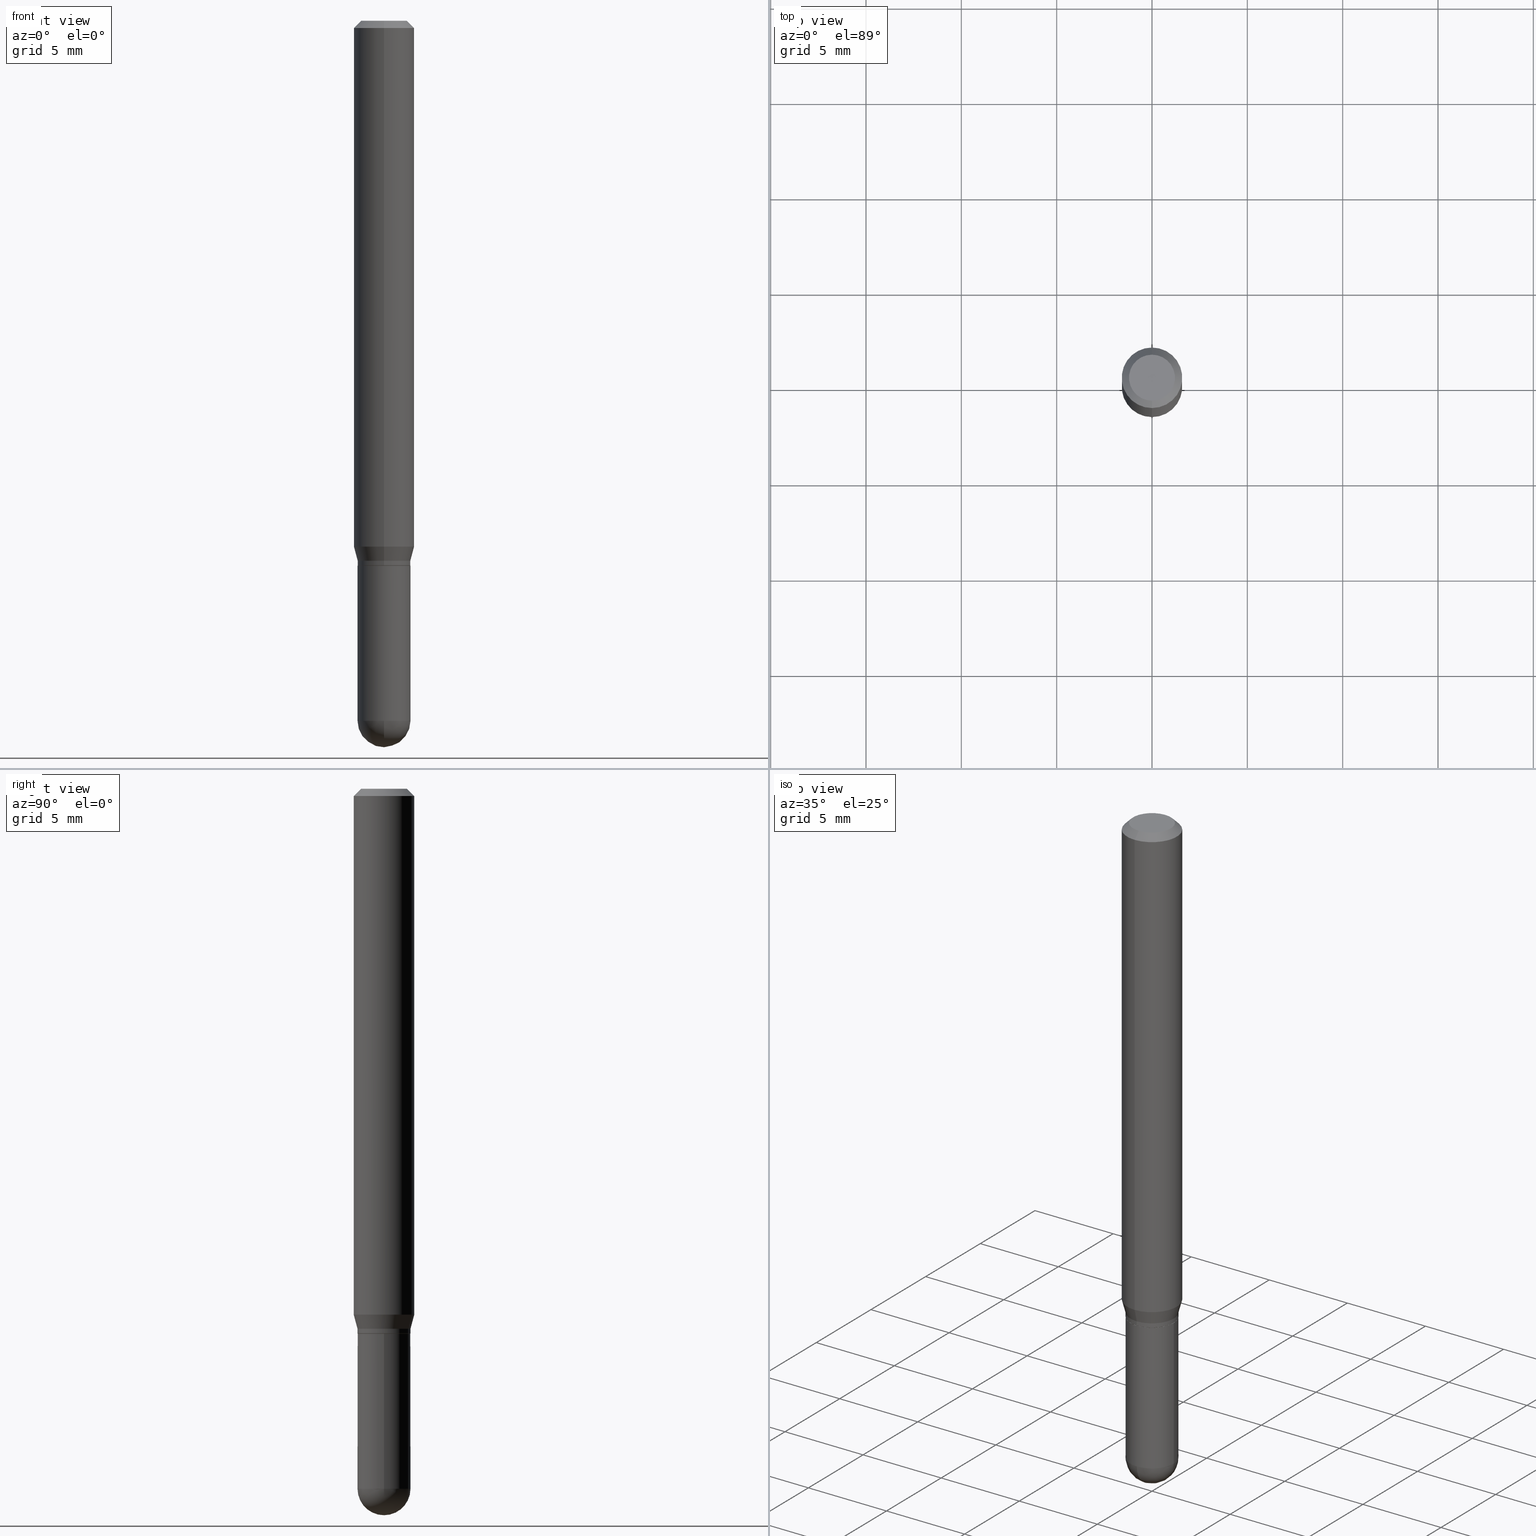
[diagram: canonical four-view strip — front | top / right | iso, engineering-drawing reading convention]
A machine part, canonical four-view strip (front | top / right | iso — engineering-drawing reading convention). The complete STEP part file that produces these views, byte-faithful:
ISO-10303-21;
HEADER;
FILE_DESCRIPTION (( 'STEP AP203' ),
    '1' );
FILE_NAME ('30037.STEP',
    '2024-03-08T15:16:41',
    ( '' ),
    ( '' ),
    'SwSTEP 2.0',
    'SolidWorks 2023',
    '' );
FILE_SCHEMA (( 'CONFIG_CONTROL_DESIGN' ));
ENDSEC;

DATA;
#1 = AXIS2_PLACEMENT_3D ( 'NONE', #16, #455, #255 ) ;
#2 = FACE_OUTER_BOUND ( 'NONE', #131, .T. ) ;
#3 = VECTOR ( 'NONE', #199, 39.37007874015748143 ) ;
#4 = CARTESIAN_POINT ( 'NONE',  ( -0.05469999999999999862, 3.886668764607747919E-16, -2.690657494369433708E-30 ) ) ;
#5 = CALENDAR_DATE ( 2024, 8, 3 ) ;
#6 = EDGE_CURVE ( 'NONE', #186, #304, #119, .T. ) ;
#7 = CARTESIAN_POINT ( 'NONE',  ( 0.000000000000000000, 0.000000000000000000, 0.000000000000000000 ) ) ;
#8 = DIRECTION ( 'NONE',  ( -2.445468806185136877E-29, 3.491481338843145188E-15, 1.000000000000000000 ) ) ;
#9 = VERTEX_POINT ( 'NONE', #47 ) ;
#10 = CC_DESIGN_DATE_AND_TIME_ASSIGNMENT ( #330, #488, ( #457 ) ) ;
#11 = FACE_OUTER_BOUND ( 'NONE', #418, .T. ) ;
#12 = DIRECTION ( 'NONE',  ( -2.445468806185136597E-29, 3.491481338843145583E-15, 1.000000000000000000 ) ) ;
#13 = DATE_AND_TIME ( #210, #154 ) ;
#14 = DIRECTION ( 'NONE',  ( -4.937700262164674260E-15, -0.7071067811865632269, 0.7071067811865319186 ) ) ;
#15 = VERTEX_POINT ( 'NONE', #42 ) ;
#16 = CARTESIAN_POINT ( 'NONE',  ( 3.819680584694662481E-16, 0.05469999999999607121, -1.125000000000000222 ) ) ;
#17 = EDGE_LOOP ( 'NONE', ( #63, #226, #39, #59 ) ) ;
#18 = ADVANCED_FACE ( 'NONE', ( #158 ), #373, .T. ) ;
#19 = DIRECTION ( 'NONE',  ( -6.982962677686265922E-15, -1.000000000000000000, 3.491940666139061088E-15 ) ) ;
#20 = AXIS2_PLACEMENT_3D ( 'NONE', #40, #198, #89 ) ;
#21 = VERTEX_POINT ( 'NONE', #205 ) ;
#22 = FACE_OUTER_BOUND ( 'NONE', #352, .T. ) ;
#23 = ORIENTED_EDGE ( 'NONE', *, *, #423, .T. ) ;
#24 = EDGE_CURVE ( 'NONE', #453, #461, #462, .T. ) ;
#25 = DIRECTION ( 'NONE',  ( -2.445468806185136597E-29, 3.491481338843145583E-15, 1.000000000000000000 ) ) ;
#26 = CARTESIAN_POINT ( 'NONE',  ( 3.534436065579377749E-29, -5.046237979029997798E-15, -1.445300000000000029 ) ) ;
#27 = EDGE_CURVE ( 'NONE', #461, #396, #512, .T. ) ;
#28 = CONICAL_SURFACE ( 'NONE', #92, 0.06250000000000000000, 0.7853981633974483900 ) ;
#29 = AXIS2_PLACEMENT_3D ( 'NONE', #261, #402, #88 ) ;
#30 = DIRECTION ( 'NONE',  ( 6.982962677686265922E-15, 1.000000000000000000, -4.994237648380731355E-15 ) ) ;
#31 = DIRECTION ( 'NONE',  ( 6.982962677686265922E-15, 1.000000000000000000, -3.483106191921935554E-15 ) ) ;
#32 = ORIENTED_EDGE ( 'NONE', *, *, #117, .T. ) ;
#33 = EDGE_CURVE ( 'NONE', #511, #313, #285, .T. ) ;
#34 = DIRECTION ( 'NONE',  ( 6.982962677686265922E-15, 1.000000000000000000, -3.491940666139060694E-15 ) ) ;
#35 = DIRECTION ( 'NONE',  ( 1.000000000000000000, -6.982962677686259611E-15, 0.000000000000000000 ) ) ;
#36 = VECTOR ( 'NONE', #325, 39.37007874015748143 ) ;
#37 = AXIS2_PLACEMENT_3D ( 'NONE', #118, #384, #34 ) ;
#38 = CARTESIAN_POINT ( 'NONE',  ( -0.05469999999999999862, -4.098410366153493916E-15, -1.125000000000000222 ) ) ;
#39 = ORIENTED_EDGE ( 'NONE', *, *, #295, .F. ) ;
#40 = CARTESIAN_POINT ( 'NONE',  ( 2.750791567104804618E-29, -3.928433249406443724E-15, -1.125000000000000222 ) ) ;
#41 = DIRECTION ( 'NONE',  ( -2.445148059648714686E-29, 3.491940666139061088E-15, 1.000000000000000000 ) ) ;
#42 = CARTESIAN_POINT ( 'NONE',  ( -3.886668764607396383E-16, -0.05470000000000508483, -1.445299999999999807 ) ) ;
#43 = ADVANCED_FACE ( 'NONE', ( #249 ), #45, .T. ) ;
#44 = SECURITY_CLASSIFICATION_LEVEL ( 'unclassified' ) ;
#45 = CONICAL_SURFACE ( 'NONE', #77, 0.05470000000000018597, 0.2617993877991511287 ) ;
#46 = ORGANIZATION ( 'UNSPECIFIED', 'UNSPECIFIED', '' ) ;
#47 = CARTESIAN_POINT ( 'NONE',  ( -4.364351673553652426E-16, -0.06250000000000380251, -1.085890003700963558 ) ) ;
#48 = DIRECTION ( 'NONE',  ( -2.445468806185136597E-29, 3.491481338843145583E-15, 1.000000000000000000 ) ) ;
#49 = ADVANCED_FACE ( 'NONE', ( #510 ), #274, .T. ) ;
#50 = DIRECTION ( 'NONE',  ( 1.000000000000000000, -6.982962677686259611E-15, 0.000000000000000000 ) ) ;
#51 = PERSON_AND_ORGANIZATION ( #417, #46 ) ;
#52 = DIRECTION ( 'NONE',  ( -6.982962677686265133E-15, -1.000000000000000000, 2.497118824190365677E-15 ) ) ;
#53 = COORDINATED_UNIVERSAL_TIME_OFFSET ( 5, 0, .BEHIND. ) ;
#54 = CC_DESIGN_PERSON_AND_ORGANIZATION_ASSIGNMENT ( #241, #479, ( #367 ) ) ;
#55 = DIRECTION ( 'NONE',  ( -2.445148059648714686E-29, 3.491940666139061088E-15, 1.000000000000000000 ) ) ;
#56 = EDGE_CURVE ( 'NONE', #65, #143, #433, .T. ) ;
#57 = DIRECTION ( 'NONE',  ( -2.445148059648714686E-29, 3.491940666139061088E-15, 1.000000000000000000 ) ) ;
#58 = EDGE_CURVE ( 'NONE', #65, #387, #85, .T. ) ;
#59 = ORIENTED_EDGE ( 'NONE', *, *, #166, .F. ) ;
#60 = CARTESIAN_POINT ( 'NONE',  ( 3.529758305977566399E-29, -5.052936797021334001E-15, -1.445300000000000029 ) ) ;
#61 = CIRCLE ( 'NONE', #404, 0.05470000000000018597 ) ;
#62 = AXIS2_PLACEMENT_3D ( 'NONE', #460, #188, #416 ) ;
#63 = ORIENTED_EDGE ( 'NONE', *, *, #306, .F. ) ;
#64 = DIRECTION ( 'NONE',  ( -6.982962677686265922E-15, -1.000000000000000000, 3.491940666139060694E-15 ) ) ;
#65 = VERTEX_POINT ( 'NONE', #97 ) ;
#66 = EDGE_CURVE ( 'NONE', #387, #192, #252, .T. ) ;
#67 = CARTESIAN_POINT ( 'NONE',  ( 4.163780431554463142E-16, 0.05469999999999629325, -1.115000000000000213 ) ) ;
#68 = SPHERICAL_SURFACE ( 'NONE', #183, 0.05470000000000006107 ) ;
#69 = VECTOR ( 'NONE', #309, 39.37007874015748143 ) ;
#70 = FACE_OUTER_BOUND ( 'NONE', #137, .T. ) ;
#71 = ADVANCED_FACE ( 'NONE', ( #216 ), #403, .F. ) ;
#72 = PLANE ( 'NONE',  #37 ) ;
#73 = ORIENTED_EDGE ( 'NONE', *, *, #442, .T. ) ;
#74 = CARTESIAN_POINT ( 'NONE',  ( 3.886668764607755808E-16, 0.05470000000000011658, -1.910091544378070355E-16 ) ) ;
#75 = DIRECTION ( 'NONE',  ( -6.982962677686265922E-15, -1.000000000000000000, 3.491940666139061088E-15 ) ) ;
#76 = CC_DESIGN_DATE_AND_TIME_ASSIGNMENT ( #474, #202, ( #434 ) ) ;
#77 = AXIS2_PLACEMENT_3D ( 'NONE', #321, #323, #353 ) ;
#78 = EDGE_CURVE ( 'NONE', #143, #192, #311, .T. ) ;
#79 = CARTESIAN_POINT ( 'NONE',  ( -0.05470000000000000556, -4.098410366153493916E-15, -1.445300000000000029 ) ) ;
#80 = CARTESIAN_POINT ( 'NONE',  ( 3.851141627820017007E-16, 0.05419999999999607077, -1.125000000000000222 ) ) ;
#81 = MANIFOLD_SOLID_BREP ( 'Body-Move/Copy2[2]', #248 ) ;
#82 = APPROVAL_DATE_TIME ( #392, #502 ) ;
#83 = ORIENTED_EDGE ( 'NONE', *, *, #284, .F. ) ;
#84 = EDGE_LOOP ( 'NONE', ( #152, #263 ) ) ;
#85 = CIRCLE ( 'NONE', #20, 0.05419999999999999818 ) ;
#86 = EDGE_LOOP ( 'NONE', ( #494, #497, #470, #312 ) ) ;
#87 = CARTESIAN_POINT ( 'NONE',  ( 2.726340086508316930E-29, -3.893513842745053460E-15, -1.115000000000000213 ) ) ;
#88 = DIRECTION ( 'NONE',  ( 1.000000000000000000, 0.000000000000000000, 0.000000000000000000 ) ) ;
#89 = DIRECTION ( 'NONE',  ( -6.982962677686266711E-15, -1.000000000000000000, 2.520154975705040126E-15 ) ) ;
#90 = ADVANCED_FACE ( 'NONE', ( #171 ), #214, .T. ) ;
#91 = MECHANICAL_CONTEXT ( 'NONE', #336, 'mechanical' ) ;
#92 = AXIS2_PLACEMENT_3D ( 'NONE', #466, #377, #269 ) ;
#93 = CARTESIAN_POINT ( 'NONE',  ( -3.784765771305681686E-16, -0.05420000000000392559, -1.125000000000000000 ) ) ;
#94 = AXIS2_PLACEMENT_3D ( 'NONE', #222, #374, #30 ) ;
#95 = ORIENTED_EDGE ( 'NONE', *, *, #505, .T. ) ;
#96 = COORDINATED_UNIVERSAL_TIME_OFFSET ( 5, 0, .BEHIND. ) ;
#97 = CARTESIAN_POINT ( 'NONE',  ( 3.868905196214021993E-16, 0.05419999999999607077, -1.125000000000000222 ) ) ;
#98 = EDGE_LOOP ( 'NONE', ( #508, #219, #372, #115 ) ) ;
#99 = APPROVAL_ROLE ( '' ) ;
#100 = CARTESIAN_POINT ( 'NONE',  ( 2.749568993074979869E-29, -3.926687279073374408E-15, -1.124500000000000055 ) ) ;
#101 = EDGE_LOOP ( 'NONE', ( #120, #456, #217, #247, #346 ) ) ;
#102 = CARTESIAN_POINT ( 'NONE',  ( 3.534436065579377749E-29, -5.046237979029997798E-15, -1.445300000000000029 ) ) ;
#103 = AXIS2_PLACEMENT_3D ( 'NONE', #176, #12, #329 ) ;
#104 = APPROVAL_PERSON_ORGANIZATION ( #116, #502, #435 ) ;
#105 = ORIENTED_EDGE ( 'NONE', *, *, #58, .F. ) ;
#106 = DIRECTION ( 'NONE',  ( -2.445148059648714686E-29, 3.491940666139061088E-15, 1.000000000000000000 ) ) ;
#107 = DIRECTION ( 'NONE',  ( -2.445148059648714686E-29, 3.491940666139061088E-15, 1.000000000000000000 ) ) ;
#108 = CARTESIAN_POINT ( 'NONE',  ( 3.665864329476799220E-29, -5.240571417260386673E-15, -1.500000000000000222 ) ) ;
#109 = AXIS2_PLACEMENT_3D ( 'NONE', #458, #135, #486 ) ;
#110 = AXIS2_PLACEMENT_3D ( 'NONE', #227, #345, #31 ) ;
#111 = LINE ( 'NONE', #393, #203 ) ;
#112 = ORIENTED_EDGE ( 'NONE', *, *, #66, .T. ) ;
#113 = CARTESIAN_POINT ( 'NONE',  ( 3.819680584694743340E-16, 0.05469999999999498180, -1.445300000000000251 ) ) ;
#114 = EDGE_LOOP ( 'NONE', ( #177, #317, #478, #337 ) ) ;
#115 = ORIENTED_EDGE ( 'NONE', *, *, #24, .F. ) ;
#116 = PERSON_AND_ORGANIZATION ( #417, #46 ) ;
#117 = EDGE_CURVE ( 'NONE', #208, #297, #61, .T. ) ;
#118 = CARTESIAN_POINT ( 'NONE',  ( 3.316907271900976096E-16, 0.04749999999999999362, -1.702864324142429345E-16 ) ) ;
#119 = LINE ( 'NONE', #165, #221 ) ;
#120 = ORIENTED_EDGE ( 'NONE', *, *, #27, .F. ) ;
#121 = DIRECTION ( 'NONE',  ( -6.982962677686266711E-15, -1.000000000000000000, 2.520154975705040126E-15 ) ) ;
#122 = AXIS2_PLACEMENT_3D ( 'NONE', #484, #411, #19 ) ;
#123 = APPROVAL_PERSON_ORGANIZATION ( #290, #148, #132 ) ;
#124 = DIRECTION ( 'NONE',  ( -6.982962677686266711E-15, -1.000000000000000000, 2.497118824190360155E-15 ) ) ;
#125 = EDGE_CURVE ( 'NONE', #186, #9, #492, .T. ) ;
#126 = APPLICATION_PROTOCOL_DEFINITION ( 'international standard', 'config_control_design', 1994, #336 ) ;
#127 = CYLINDRICAL_SURFACE ( 'NONE', #122, 0.06250000000000000000 ) ;
#128 = APPROVAL_DATE_TIME ( #13, #155 ) ;
#129 = CYLINDRICAL_SURFACE ( 'NONE', #103, 0.05469999999999999862 ) ;
#130 = DESIGN_CONTEXT ( 'detailed design', #412, 'design' ) ;
#131 = EDGE_LOOP ( 'NONE', ( #375, #355, #324, #333 ) ) ;
#132 = APPROVAL_ROLE ( '' ) ;
#133 = ADVANCED_FACE ( 'NONE', ( #11 ), #127, .T. ) ;
#134 = AXIS2_PLACEMENT_3D ( 'NONE', #200, #363, #35 ) ;
#135 = DIRECTION ( 'NONE',  ( -2.445148059648714406E-29, 3.491940666139060694E-15, 1.000000000000000000 ) ) ;
#136 = CIRCLE ( 'NONE', #405, 0.05469999999999999862 ) ;
#137 = EDGE_LOOP ( 'NONE', ( #32, #95, #500, #184 ) ) ;
#138 = DATE_AND_TIME ( #410, #379 ) ;
#139 = FACE_OUTER_BOUND ( 'NONE', #140, .T. ) ;
#140 = EDGE_LOOP ( 'NONE', ( #400, #105 ) ) ;
#141 = LINE ( 'NONE', #464, #452 ) ;
#142 = EDGE_CURVE ( 'NONE', #511, #360, #407, .T. ) ;
#143 = VERTEX_POINT ( 'NONE', #451 ) ;
#144 = CARTESIAN_POINT ( 'NONE',  ( 3.667722089473074341E-31, -5.237910999208594418E-17, -0.01500000000000000812 ) ) ;
#145 = AXIS2_PLACEMENT_3D ( 'NONE', #308, #106, #64 ) ;
#146 = AXIS2_PLACEMENT_3D ( 'NONE', #102, #25, #469 ) ;
#147 = CARTESIAN_POINT ( 'NONE',  ( -3.784765771305681686E-16, -0.05420000000000392559, -1.125000000000000000 ) ) ;
#148 = APPROVAL ( #490, 'UNSPECIFIED' ) ;
#149 = DIRECTION ( 'NONE',  ( -2.445468806185136597E-29, 3.491481338843145583E-15, 1.000000000000000000 ) ) ;
#150 = PRODUCT ( '30037', '30037', '', ( #91 ) ) ;
#151 = CARTESIAN_POINT ( 'NONE',  ( 4.440892098500893388E-16, 0.06249999999999995143, -0.01500000000000022669 ) ) ;
#152 = ORIENTED_EDGE ( 'NONE', *, *, #408, .T. ) ;
#153 = CLOSED_SHELL ( 'NONE', ( #190, #381, #71, #310, #90 ) ) ;
#154 = LOCAL_TIME ( 10, 16, 41.00000000000000000, #53 ) ;
#155 = APPROVAL ( #175, 'UNSPECIFIED' ) ;
#156 = ORIENTED_EDGE ( 'NONE', *, *, #295, .T. ) ;
#157 = CARTESIAN_POINT ( 'NONE',  ( -3.819680584694128028E-16, -0.05470000000000407869, -1.114999999999999991 ) ) ;
#158 = FACE_OUTER_BOUND ( 'NONE', #385, .T. ) ;
#159 = EDGE_CURVE ( 'NONE', #9, #186, #327, .T. ) ;
#160 = CYLINDRICAL_SURFACE ( 'NONE', #504, 0.05470000000000011658 ) ;
#161 = ORIENTED_EDGE ( 'NONE', *, *, #344, .T. ) ;
#162 = PERSON_AND_ORGANIZATION_ROLE ( 'creator' ) ;
#163 = AXIS2_PLACEMENT_3D ( 'NONE', #204, #280, #436 ) ;
#164 = DIRECTION ( 'NONE',  ( 1.839019923739606232E-15, 0.2588190451025257910, 0.9659258262890669799 ) ) ;
#165 = CARTESIAN_POINT ( 'NONE',  ( 4.440892098500625669E-16, 0.06250000000000000000, -2.182462916336913180E-16 ) ) ;
#166 = EDGE_CURVE ( 'NONE', #15, #292, #271, .T. ) ;
#167 = CALENDAR_DATE ( 2024, 8, 3 ) ;
#168 = DIRECTION ( 'NONE',  ( -2.445148059648714686E-29, 3.491940666139060694E-15, 1.000000000000000000 ) ) ;
#169 = DIRECTION ( 'NONE',  ( -2.445148059648714686E-29, 3.491940666139061088E-15, 1.000000000000000000 ) ) ;
#170 = ORIENTED_EDGE ( 'NONE', *, *, #117, .F. ) ;
#171 = FACE_OUTER_BOUND ( 'NONE', #101, .T. ) ;
#172 = AXIS2_PLACEMENT_3D ( 'NONE', #341, #55, #399 ) ;
#173 = LOCAL_TIME ( 10, 16, 41.00000000000000000, #245 ) ;
#174 = FACE_OUTER_BOUND ( 'NONE', #481, .T. ) ;
#175 = APPROVAL_STATUS ( 'not_yet_approved' ) ;
#176 = CARTESIAN_POINT ( 'NONE',  ( 0.000000000000000000, 0.000000000000000000, 0.000000000000000000 ) ) ;
#177 = ORIENTED_EDGE ( 'NONE', *, *, #159, .T. ) ;
#178 = DIRECTION ( 'NONE',  ( -6.982962677686265922E-15, -1.000000000000000000, 4.370956789862821150E-15 ) ) ;
#179 = ORIENTED_EDGE ( 'NONE', *, *, #58, .T. ) ;
#180 = PERSON_AND_ORGANIZATION_ROLE ( 'design_owner' ) ;
#181 = VECTOR ( 'NONE', #331, 39.37007874015748143 ) ;
#182 = PLANE ( 'NONE',  #109 ) ;
#183 = AXIS2_PLACEMENT_3D ( 'NONE', #228, #506, #429 ) ;
#184 = ORIENTED_EDGE ( 'NONE', *, *, #487, .F. ) ;
#185 = DIRECTION ( 'NONE',  ( -2.445148059648714686E-29, 3.491940666139061088E-15, 1.000000000000000000 ) ) ;
#186 = VERTEX_POINT ( 'NONE', #369 ) ;
#187 = PRODUCT_RELATED_PRODUCT_CATEGORY ( 'detail', '', ( #150 ) ) ;
#188 = DIRECTION ( 'NONE',  ( -1.000000000000000000, 7.105427357601001070E-15, -4.926315508542082329E-29 ) ) ;
#189 = DIRECTION ( 'NONE',  ( -6.982962677686265922E-15, -1.000000000000000000, 3.483106191921935554E-15 ) ) ;
#190 = ADVANCED_FACE ( 'NONE', ( #174 ), #129, .T. ) ;
#191 = CYLINDRICAL_SURFACE ( 'NONE', #145, 0.05470000000000011658 ) ;
#192 = VERTEX_POINT ( 'NONE', #371 ) ;
#193 = LINE ( 'NONE', #74, #265 ) ;
#194 = ORIENTED_EDGE ( 'NONE', *, *, #268, .F. ) ;
#195 = AXIS2_PLACEMENT_3D ( 'NONE', #472, #169, #314 ) ;
#196 = CC_DESIGN_APPROVAL ( #148, ( #367 ) ) ;
#197 = ORIENTED_EDGE ( 'NONE', *, *, #6, .F. ) ;
#198 = DIRECTION ( 'NONE',  ( -2.445148059648714686E-29, 3.491940666139061088E-15, 1.000000000000000000 ) ) ;
#199 = DIRECTION ( 'NONE',  ( -1.807323732225336056E-15, -0.2588190451025190186, 0.9659258262890687563 ) ) ;
#200 = CARTESIAN_POINT ( 'NONE',  ( 3.534436065579377749E-29, -5.046237979029997798E-15, -1.445300000000000029 ) ) ;
#201 = AXIS2_PLACEMENT_3D ( 'NONE', #100, #258, #52 ) ;
#202 = DATE_TIME_ROLE ( 'classification_date' ) ;
#203 = VECTOR ( 'NONE', #168, 39.37007874015748143 ) ;
#204 = CARTESIAN_POINT ( 'NONE',  ( 2.161144490363163213E-46, -3.086352297367912300E-32, -8.838501545275121321E-18 ) ) ;
#205 = CARTESIAN_POINT ( 'NONE',  ( 0.05469999999999999862, -4.309884564667978405E-15, -1.125000000000000222 ) ) ;
#206 = ADVANCED_FACE ( 'NONE', ( #139 ), #182, .F. ) ;
#207 = DIRECTION ( 'NONE',  ( 1.000000000000000000, -6.982962677686266711E-15, 4.876176775795935793E-29 ) ) ;
#208 = VERTEX_POINT ( 'NONE', #335 ) ;
#209 = DIRECTION ( 'NONE',  ( -2.445148059648714686E-29, 3.491940666139061088E-15, 1.000000000000000000 ) ) ;
#210 = CALENDAR_DATE ( 2024, 8, 3 ) ;
#211 = AXIS2_PLACEMENT_3D ( 'NONE', #236, #282, #121 ) ;
#212 = LOCAL_TIME ( 10, 16, 41.00000000000000000, #454 ) ;
#213 = AXIS2_PLACEMENT_3D ( 'NONE', #26, #351, #350 ) ;
#214 = CYLINDRICAL_SURFACE ( 'NONE', #432, 0.05469999999999999862 ) ;
#215 = EDGE_CURVE ( 'NONE', #387, #65, #397, .T. ) ;
#216 = FACE_OUTER_BOUND ( 'NONE', #224, .T. ) ;
#217 = ORIENTED_EDGE ( 'NONE', *, *, #166, .T. ) ;
#218 = CARTESIAN_POINT ( 'NONE',  ( -4.287811248607203282E-16, -0.06250000000000005551, -0.01499999999999979128 ) ) ;
#219 = ORIENTED_EDGE ( 'NONE', *, *, #306, .T. ) ;
#220 = EDGE_CURVE ( 'NONE', #292, #21, #289, .T. ) ;
#221 = VECTOR ( 'NONE', #394, 39.37007874015748143 ) ;
#222 = CARTESIAN_POINT ( 'NONE',  ( 3.529758305977566399E-29, -5.052936797021334001E-15, -1.445300000000000029 ) ) ;
#223 = CIRCLE ( 'NONE', #163, 0.04749999999999999362 ) ;
#224 = EDGE_LOOP ( 'NONE', ( #409, #161 ) ) ;
#225 = CARTESIAN_POINT ( 'NONE',  ( 0.05470000000000000556, -4.869045301083706902E-15, -1.445300000000000029 ) ) ;
#226 = ORIENTED_EDGE ( 'NONE', *, *, #293, .T. ) ;
#227 = CARTESIAN_POINT ( 'NONE',  ( 3.667722089473074341E-31, -5.237910999208594418E-17, -0.01500000000000000812 ) ) ;
#228 = CARTESIAN_POINT ( 'NONE',  ( 3.529758305977566399E-29, -5.052936797021334001E-15, -1.445300000000000029 ) ) ;
#229 = EDGE_CURVE ( 'NONE', #297, #208, #386, .T. ) ;
#230 = CONICAL_SURFACE ( 'NONE', #110, 0.06250000000000000000, 0.7853981633974483900 ) ;
#231 = LINE ( 'NONE', #499, #69 ) ;
#232 = DIRECTION ( 'NONE',  ( -6.982962677686265922E-15, -1.000000000000000000, 3.491940666139060694E-15 ) ) ;
#233 = ORIENTED_EDGE ( 'NONE', *, *, #24, .T. ) ;
#234 = EDGE_CURVE ( 'NONE', #21, #396, #475, .T. ) ;
#235 = CARTESIAN_POINT ( 'NONE',  ( 2.750791567104804618E-29, -3.928433249406443724E-15, -1.125000000000000222 ) ) ;
#236 = CARTESIAN_POINT ( 'NONE',  ( 2.750791567104804618E-29, -3.928433249406443724E-15, -1.125000000000000222 ) ) ;
#237 = AXIS2_PLACEMENT_3D ( 'NONE', #496, #296, #299 ) ;
#238 = CC_DESIGN_SECURITY_CLASSIFICATION ( #434, ( #367 ) ) ;
#239 = DIRECTION ( 'NONE',  ( -2.445148059648714686E-29, 3.491940666139060694E-15, 1.000000000000000000 ) ) ;
#240 = DIRECTION ( 'NONE',  ( 5.024295867788190974E-15, 0.7071067811865681119, 0.7071067811865270336 ) ) ;
#241 = PERSON_AND_ORGANIZATION ( #417, #46 ) ;
#242 = ADVANCED_FACE ( 'NONE', ( #307 ), #191, .T. ) ;
#243 = DIRECTION ( 'NONE',  ( -6.982962677686266711E-15, -1.000000000000000000, 2.497118824190360155E-15 ) ) ;
#244 = ORIENTED_EDGE ( 'NONE', *, *, #284, .T. ) ;
#245 = COORDINATED_UNIVERSAL_TIME_OFFSET ( 5, 0, .BEHIND. ) ;
#246 = DIRECTION ( 'NONE',  ( -2.445148059648714686E-29, 3.491940666139061088E-15, 1.000000000000000000 ) ) ;
#247 = ORIENTED_EDGE ( 'NONE', *, *, #220, .T. ) ;
#248 = CLOSED_SHELL ( 'NONE', ( #242, #450, #251, #49, #390, #43, #133, #326, #439, #206, #18, #413 ) ) ;
#249 = FACE_OUTER_BOUND ( 'NONE', #260, .T. ) ;
#250 = CARTESIAN_POINT ( 'NONE',  ( 0.000000000000000000, 0.000000000000000000, 0.000000000000000000 ) ) ;
#251 = ADVANCED_FACE ( 'NONE', ( #380 ), #28, .T. ) ;
#252 = LINE ( 'NONE', #93, #318 ) ;
#253 = AXIS2_PLACEMENT_3D ( 'NONE', #287, #209, #178 ) ;
#254 = CONICAL_SURFACE ( 'NONE', #428, 0.05470000000000018597, 0.2617993877991511287 ) ;
#255 = DIRECTION ( 'NONE',  ( -1.000000000000000000, 6.982962677686265922E-15, -4.876176775795935793E-29 ) ) ;
#256 = EDGE_LOOP ( 'NONE', ( #383, #342, #194, #441 ) ) ;
#257 = LENGTH_MEASURE_WITH_UNIT ( LENGTH_MEASURE( 0.02539999999999999897 ), #440 );
#258 = DIRECTION ( 'NONE',  ( -2.445148059648714686E-29, 3.491940666139061088E-15, 1.000000000000000000 ) ) ;
#259 = ADVANCED_BREP_SHAPE_REPRESENTATION ( '30037', ( #426, #81, #29 ), #272 ) ;
#260 = EDGE_LOOP ( 'NONE', ( #266, #446, #414, #437 ) ) ;
#261 = CARTESIAN_POINT ( 'NONE',  ( 0.000000000000000000, 0.000000000000000000, 0.000000000000000000 ) ) ;
#262 = DIRECTION ( 'NONE',  ( 1.000000000000000000, -6.982962677686265922E-15, 4.883557194083112340E-29 ) ) ;
#263 = ORIENTED_EDGE ( 'NONE', *, *, #33, .T. ) ;
#264 = CARTESIAN_POINT ( 'NONE',  ( 2.751152406958279232E-29, -3.927916506198539224E-15, -1.125000000000000222 ) ) ;
#265 = VECTOR ( 'NONE', #239, 39.37007874015748143 ) ;
#266 = ORIENTED_EDGE ( 'NONE', *, *, #505, .F. ) ;
#267 = DIRECTION ( 'NONE',  ( -2.445148059648714686E-29, 3.491940666139061088E-15, 1.000000000000000000 ) ) ;
#268 = EDGE_CURVE ( 'NONE', #192, #143, #467, .T. ) ;
#269 = DIRECTION ( 'NONE',  ( 6.982962677686265922E-15, 1.000000000000000000, -3.483106191921935554E-15 ) ) ;
#270 = CARTESIAN_POINT ( 'NONE',  ( 3.840629472727447874E-16, 0.04749999999999999362, -1.747056831868805136E-16 ) ) ;
#271 = CIRCLE ( 'NONE', #503, 0.05470000000000000556 ) ;
#272 =( GEOMETRIC_REPRESENTATION_CONTEXT ( 3 ) GLOBAL_UNCERTAINTY_ASSIGNED_CONTEXT ( ( #332 ) ) GLOBAL_UNIT_ASSIGNED_CONTEXT ( ( #449, #301, #498 ) ) REPRESENTATION_CONTEXT ( 'NONE', 'WORKASPACE' ) );
#273 = ORIENTED_EDGE ( 'NONE', *, *, #358, .F. ) ;
#274 = CYLINDRICAL_SURFACE ( 'NONE', #339, 0.06250000000000000000 ) ;
#275 = PRODUCT_DEFINITION_SHAPE ( 'NONE', 'NONE',  #457 ) ;
#276 = ORIENTED_EDGE ( 'NONE', *, *, #56, .F. ) ;
#277 = VECTOR ( 'NONE', #8, 39.37007874015748143 ) ;
#278 = AXIS2_PLACEMENT_3D ( 'NONE', #235, #41, #471 ) ;
#279 = APPROVAL_STATUS ( 'not_yet_approved' ) ;
#280 = DIRECTION ( 'NONE',  ( -2.445148059648714686E-29, 3.491940666139061088E-15, 1.000000000000000000 ) ) ;
#281 = ORIENTED_EDGE ( 'NONE', *, *, #268, .T. ) ;
#282 = DIRECTION ( 'NONE',  ( -2.445148059648714686E-29, 3.491940666139061088E-15, 1.000000000000000000 ) ) ;
#283 = ORIENTED_EDGE ( 'NONE', *, *, #27, .T. ) ;
#284 = EDGE_CURVE ( 'NONE', #304, #360, #294, .T. ) ;
#285 = CIRCLE ( 'NONE', #195, 0.04749999999999999362 ) ;
#286 = AXIS2_PLACEMENT_3D ( 'NONE', #425, #185, #302 ) ;
#287 = CARTESIAN_POINT ( 'NONE',  ( 2.655161835541346993E-29, -3.791863462877290691E-15, -1.085890003700963780 ) ) ;
#288 = EDGE_CURVE ( 'NONE', #313, #304, #231, .T. ) ;
#289 = LINE ( 'NONE', #448, #181 ) ;
#290 = PERSON_AND_ORGANIZATION ( #417, #46 ) ;
#291 = DIRECTION ( 'NONE',  ( -2.445148059648714686E-29, 3.491940666139061088E-15, 1.000000000000000000 ) ) ;
#292 = VERTEX_POINT ( 'NONE', #225 ) ;
#293 = EDGE_CURVE ( 'NONE', #300, #453, #398, .T. ) ;
#294 = CIRCLE ( 'NONE', #354, 0.06250000000000000000 ) ;
#295 = EDGE_CURVE ( 'NONE', #292, #453, #485, .T. ) ;
#296 = DIRECTION ( 'NONE',  ( -2.445468806185136597E-29, 3.491481338843145583E-15, 1.000000000000000000 ) ) ;
#297 = VERTEX_POINT ( 'NONE', #67 ) ;
#298 = APPROVAL_DATE_TIME ( #138, #148 ) ;
#299 = DIRECTION ( 'NONE',  ( 1.000000000000000000, -6.982962677686269866E-15, 0.000000000000000000 ) ) ;
#300 = VERTEX_POINT ( 'NONE', #108 ) ;
#301 =( NAMED_UNIT ( * ) PLANE_ANGLE_UNIT ( ) SI_UNIT ( $, .RADIAN. ) );
#302 = DIRECTION ( 'NONE',  ( -6.982962677686265133E-15, -1.000000000000000000, 2.497118824190365677E-15 ) ) ;
#303 = CC_DESIGN_PERSON_AND_ORGANIZATION_ASSIGNMENT ( #362, #315, ( #434 ) ) ;
#304 = VERTEX_POINT ( 'NONE', #151 ) ;
#305 = DIRECTION ( 'NONE',  ( -6.982962677686265922E-15, -1.000000000000000000, 3.483106191921935554E-15 ) ) ;
#306 = EDGE_CURVE ( 'NONE', #300, #15, #340, .T. ) ;
#307 = FACE_OUTER_BOUND ( 'NONE', #319, .T. ) ;
#308 = CARTESIAN_POINT ( 'NONE',  ( 0.000000000000000000, 0.000000000000000000, 0.000000000000000000 ) ) ;
#309 = DIRECTION ( 'NONE',  ( 4.937700262164548042E-15, 0.7071067811865451302, -0.7071067811865499042 ) ) ;
#310 = ADVANCED_FACE ( 'NONE', ( #347 ), #465, .T. ) ;
#311 = CIRCLE ( 'NONE', #201, 0.05470000000000006107 ) ;
#312 = ORIENTED_EDGE ( 'NONE', *, *, #288, .F. ) ;
#313 = VERTEX_POINT ( 'NONE', #270 ) ;
#314 = DIRECTION ( 'NONE',  ( -6.982962677686266711E-15, -1.000000000000000000, 3.491940666139061088E-15 ) ) ;
#315 = PERSON_AND_ORGANIZATION_ROLE ( 'classification_officer' ) ;
#316 = DIRECTION ( 'NONE',  ( -2.445148059648714686E-29, 3.491940666139061088E-15, 1.000000000000000000 ) ) ;
#317 = ORIENTED_EDGE ( 'NONE', *, *, #6, .T. ) ;
#318 = VECTOR ( 'NONE', #14, 39.37007874015748143 ) ;
#319 = EDGE_LOOP ( 'NONE', ( #281, #73, #170, #273 ) ) ;
#320 = CARTESIAN_POINT ( 'NONE',  ( -3.773273898774340269E-16, -0.04749999999999999362, 1.570286800963302463E-16 ) ) ;
#321 = CARTESIAN_POINT ( 'NONE',  ( 2.726340086508316930E-29, -3.893513842745053460E-15, -1.115000000000000213 ) ) ;
#322 = PERSON_AND_ORGANIZATION ( #417, #46 ) ;
#323 = DIRECTION ( 'NONE',  ( -2.445148059648714686E-29, 3.491940666139061088E-15, 1.000000000000000000 ) ) ;
#324 = ORIENTED_EDGE ( 'NONE', *, *, #358, .T. ) ;
#325 = DIRECTION ( 'NONE',  ( -4.851104656540964275E-15, -0.7071067811865500152, -0.7071067811865450192 ) ) ;
#326 = ADVANCED_FACE ( 'NONE', ( #22 ), #230, .T. ) ;
#327 = CIRCLE ( 'NONE', #253, 0.06250000000000000000 ) ;
#328 = LOCAL_TIME ( 10, 16, 41.00000000000000000, #395 ) ;
#329 = DIRECTION ( 'NONE',  ( 1.000000000000000000, -6.982962677686266711E-15, 4.876176775795935793E-29 ) ) ;
#330 = DATE_AND_TIME ( #495, #212 ) ;
#331 = DIRECTION ( 'NONE',  ( -2.445468806185136877E-29, 3.491481338843145188E-15, 1.000000000000000000 ) ) ;
#332 = UNCERTAINTY_MEASURE_WITH_UNIT (LENGTH_MEASURE( 1.000000000000000082E-05 ), #449, 'distance_accuracy_value', 'NONE');
#333 = ORIENTED_EDGE ( 'NONE', *, *, #229, .F. ) ;
#334 = APPLICATION_PROTOCOL_DEFINITION ( 'international standard', 'config_control_design', 1994, #412 ) ;
#335 = CARTESIAN_POINT ( 'NONE',  ( -3.819680584694128028E-16, -0.05470000000000407869, -1.114999999999999991 ) ) ;
#336 = APPLICATION_CONTEXT ( 'configuration controlled 3d designs of mechanical parts and assemblies' ) ;
#337 = ORIENTED_EDGE ( 'NONE', *, *, #423, .F. ) ;
#338 = PERSON_AND_ORGANIZATION_ROLE ( 'creator' ) ;
#339 = AXIS2_PLACEMENT_3D ( 'NONE', #431, #473, #75 ) ;
#340 = CIRCLE ( 'NONE', #62, 0.05470000000000006107 ) ;
#341 = CARTESIAN_POINT ( 'NONE',  ( 2.750791567104804618E-29, -3.928433249406443724E-15, -1.125000000000000222 ) ) ;
#342 = ORIENTED_EDGE ( 'NONE', *, *, #56, .T. ) ;
#343 = CC_DESIGN_PERSON_AND_ORGANIZATION_ASSIGNMENT ( #406, #180, ( #150 ) ) ;
#344 = EDGE_CURVE ( 'NONE', #396, #21, #136, .T. ) ;
#345 = DIRECTION ( 'NONE',  ( 2.445148059648714686E-29, -3.491940666139061088E-15, -1.000000000000000000 ) ) ;
#346 = ORIENTED_EDGE ( 'NONE', *, *, #344, .F. ) ;
#347 = FACE_OUTER_BOUND ( 'NONE', #17, .T. ) ;
#348 = EDGE_CURVE ( 'NONE', #461, #15, #361, .T. ) ;
#349 = FACE_OUTER_BOUND ( 'NONE', #98, .T. ) ;
#350 = DIRECTION ( 'NONE',  ( 1.000000000000000000, -6.982962677686259611E-15, 0.000000000000000000 ) ) ;
#351 = DIRECTION ( 'NONE',  ( -2.445468806185136597E-29, 3.491481338843145583E-15, 1.000000000000000000 ) ) ;
#352 = EDGE_LOOP ( 'NONE', ( #430, #459, #357, #244 ) ) ;
#353 = DIRECTION ( 'NONE',  ( -6.982962677686266711E-15, -1.000000000000000000, 2.497118824190360155E-15 ) ) ;
#354 = AXIS2_PLACEMENT_3D ( 'NONE', #507, #267, #305 ) ;
#355 = ORIENTED_EDGE ( 'NONE', *, *, #78, .T. ) ;
#356 = FACE_OUTER_BOUND ( 'NONE', #256, .T. ) ;
#357 = ORIENTED_EDGE ( 'NONE', *, *, #288, .T. ) ;
#358 = EDGE_CURVE ( 'NONE', #192, #208, #141, .T. ) ;
#359 = CARTESIAN_POINT ( 'NONE',  ( 3.886668764608032895E-16, 0.05469999999999629325, -1.115000000000000213 ) ) ;
#360 = VERTEX_POINT ( 'NONE', #501 ) ;
#361 = CIRCLE ( 'NONE', #213, 0.05470000000000000556 ) ;
#362 = PERSON_AND_ORGANIZATION ( #417, #46 ) ;
#363 = DIRECTION ( 'NONE',  ( -2.445468806185136597E-29, 3.491481338843145583E-15, 1.000000000000000000 ) ) ;
#364 = DIRECTION ( 'NONE',  ( -6.982962677686265922E-15, -1.000000000000000000, 4.370956789862821150E-15 ) ) ;
#365 = CARTESIAN_POINT ( 'NONE',  ( 2.655161835541346993E-29, -3.791863462877290691E-15, -1.085890003700963780 ) ) ;
#366 = AXIS2_PLACEMENT_3D ( 'NONE', #365, #368, #364 ) ;
#367 = PRODUCT_DEFINITION_FORMATION_WITH_SPECIFIED_SOURCE ( 'ANY', '', #150, .NOT_KNOWN. ) ;
#368 = DIRECTION ( 'NONE',  ( -2.445148059648714686E-29, 3.491940666139061088E-15, 1.000000000000000000 ) ) ;
#369 = CARTESIAN_POINT ( 'NONE',  ( 4.440892098500889444E-16, 0.06249999999999619055, -1.085890003700964002 ) ) ;
#370 = ORIENTED_EDGE ( 'NONE', *, *, #125, .T. ) ;
#371 = CARTESIAN_POINT ( 'NONE',  ( -3.819680584694121126E-16, -0.05470000000000403706, -1.124500000000000055 ) ) ;
#372 = ORIENTED_EDGE ( 'NONE', *, *, #348, .F. ) ;
#373 = CONICAL_SURFACE ( 'NONE', #211, 0.05419999999999999818, 0.7853981633974739252 ) ;
#374 = DIRECTION ( 'NONE',  ( -1.000000000000000000, 6.982962677686265922E-15, -4.883557194083112901E-29 ) ) ;
#375 = ORIENTED_EDGE ( 'NONE', *, *, #442, .F. ) ;
#376 = EDGE_CURVE ( 'NONE', #360, #304, #477, .T. ) ;
#377 = DIRECTION ( 'NONE',  ( 2.445148059648714686E-29, -3.491940666139061088E-15, -1.000000000000000000 ) ) ;
#378 = DIRECTION ( 'NONE',  ( 1.000000000000000000, -6.982962677686269866E-15, 0.000000000000000000 ) ) ;
#379 = LOCAL_TIME ( 10, 16, 41.00000000000000000, #96 ) ;
#380 = FACE_OUTER_BOUND ( 'NONE', #86, .T. ) ;
#381 = ADVANCED_FACE ( 'NONE', ( #349 ), #68, .T. ) ;
#382 = CARTESIAN_POINT ( 'NONE',  ( 2.726340086508316930E-29, -3.893513842745053460E-15, -1.115000000000000213 ) ) ;
#383 = ORIENTED_EDGE ( 'NONE', *, *, #215, .T. ) ;
#384 = DIRECTION ( 'NONE',  ( 2.445148059648714406E-29, -3.491940666139060694E-15, -1.000000000000000000 ) ) ;
#385 = EDGE_LOOP ( 'NONE', ( #276, #179, #112, #482 ) ) ;
#386 = CIRCLE ( 'NONE', #444, 0.05470000000000018597 ) ;
#387 = VERTEX_POINT ( 'NONE', #147 ) ;
#388 = VECTOR ( 'NONE', #164, 39.37007874015748143 ) ;
#389 = LINE ( 'NONE', #359, #388 ) ;
#390 = ADVANCED_FACE ( 'NONE', ( #70 ), #254, .T. ) ;
#391 = DIMENSIONAL_EXPONENTS ( 1.000000000000000000, 0.000000000000000000, 0.000000000000000000, 0.000000000000000000, 0.000000000000000000, 0.000000000000000000, 0.000000000000000000 ) ;
#392 = DATE_AND_TIME ( #5, #173 ) ;
#393 = CARTESIAN_POINT ( 'NONE',  ( -4.364351673553916201E-16, -0.06250000000000000000, 2.182462916336913180E-16 ) ) ;
#394 = DIRECTION ( 'NONE',  ( -2.445148059648714686E-29, 3.491940666139060694E-15, 1.000000000000000000 ) ) ;
#395 = COORDINATED_UNIVERSAL_TIME_OFFSET ( 5, 0, .BEHIND. ) ;
#396 = VERTEX_POINT ( 'NONE', #38 ) ;
#397 = CIRCLE ( 'NONE', #172, 0.05419999999999999818 ) ;
#398 = CIRCLE ( 'NONE', #445, 0.05470000000000006107 ) ;
#399 = DIRECTION ( 'NONE',  ( -6.982962677686266711E-15, -1.000000000000000000, 2.520154975705040126E-15 ) ) ;
#400 = ORIENTED_EDGE ( 'NONE', *, *, #215, .F. ) ;
#401 = CARTESIAN_POINT ( 'NONE',  ( 3.534436065579377749E-29, -5.046237979029997798E-15, -1.445300000000000029 ) ) ;
#402 = DIRECTION ( 'NONE',  ( 0.000000000000000000, 0.000000000000000000, 1.000000000000000000 ) ) ;
#403 = PLANE ( 'NONE',  #1 ) ;
#404 = AXIS2_PLACEMENT_3D ( 'NONE', #87, #57, #124 ) ;
#405 = AXIS2_PLACEMENT_3D ( 'NONE', #264, #149, #378 ) ;
#406 = PERSON_AND_ORGANIZATION ( #417, #46 ) ;
#407 = LINE ( 'NONE', #218, #36 ) ;
#408 = EDGE_CURVE ( 'NONE', #313, #511, #223, .T. ) ;
#409 = ORIENTED_EDGE ( 'NONE', *, *, #234, .T. ) ;
#410 = CALENDAR_DATE ( 2024, 8, 3 ) ;
#411 = DIRECTION ( 'NONE',  ( -2.445148059648714686E-29, 3.491940666139061088E-15, 1.000000000000000000 ) ) ;
#412 = APPLICATION_CONTEXT ( 'configuration controlled 3d designs of mechanical parts and assemblies' ) ;
#413 = ADVANCED_FACE ( 'NONE', ( #2 ), #160, .T. ) ;
#414 = ORIENTED_EDGE ( 'NONE', *, *, #487, .T. ) ;
#415 = PERSON_AND_ORGANIZATION ( #417, #46 ) ;
#416 = DIRECTION ( 'NONE',  ( -7.105427357601001070E-15, -1.000000000000000000, 0.000000000000000000 ) ) ;
#417 = PERSON ( 'UNSPECIFIED', 'UNSPECIFIED', 'UNSPECIFIED', ('UNSPECIFIED'), ('UNSPECIFIED'), ('UNSPECIFIED') ) ;
#418 = EDGE_LOOP ( 'NONE', ( #197, #370, #23, #83 ) ) ;
#419 = APPROVAL_PERSON_ORGANIZATION ( #51, #155, #99 ) ;
#420 = DIRECTION ( 'NONE',  ( -2.445148059648714686E-29, 3.491940666139060694E-15, 1.000000000000000000 ) ) ;
#421 = ORIENTED_EDGE ( 'NONE', *, *, #234, .F. ) ;
#422 = DIRECTION ( 'NONE',  ( 6.982962677686265133E-15, 1.000000000000000000, 0.000000000000000000 ) ) ;
#423 = EDGE_CURVE ( 'NONE', #9, #360, #111, .T. ) ;
#424 = CC_DESIGN_PERSON_AND_ORGANIZATION_ASSIGNMENT ( #415, #338, ( #457 ) ) ;
#425 = CARTESIAN_POINT ( 'NONE',  ( 2.749568993074979869E-29, -3.926687279073374408E-15, -1.124500000000000055 ) ) ;
#426 = MANIFOLD_SOLID_BREP ( 'Body-Move/Copy2[1]', #153 ) ;
#427 = VECTOR ( 'NONE', #240, 39.37007874015748143 ) ;
#428 = AXIS2_PLACEMENT_3D ( 'NONE', #382, #246, #243 ) ;
#429 = DIRECTION ( 'NONE',  ( 6.982962677686265922E-15, 1.000000000000000000, -4.994237648380731355E-15 ) ) ;
#430 = ORIENTED_EDGE ( 'NONE', *, *, #142, .F. ) ;
#431 = CARTESIAN_POINT ( 'NONE',  ( 0.000000000000000000, 0.000000000000000000, 0.000000000000000000 ) ) ;
#432 = AXIS2_PLACEMENT_3D ( 'NONE', #250, #48, #207 ) ;
#433 = LINE ( 'NONE', #80, #427 ) ;
#434 = SECURITY_CLASSIFICATION ( '', '', #44 ) ;
#435 = APPROVAL_ROLE ( '' ) ;
#436 = DIRECTION ( 'NONE',  ( -6.982962677686266711E-15, -1.000000000000000000, 3.491940666139061088E-15 ) ) ;
#437 = ORIENTED_EDGE ( 'NONE', *, *, #125, .F. ) ;
#438 = SHAPE_DEFINITION_REPRESENTATION ( #275, #259 ) ;
#439 = ADVANCED_FACE ( 'NONE', ( #476 ), #72, .F. ) ;
#440 =( LENGTH_UNIT ( ) NAMED_UNIT ( * ) SI_UNIT ( $, .METRE. ) );
#441 = ORIENTED_EDGE ( 'NONE', *, *, #66, .F. ) ;
#442 = EDGE_CURVE ( 'NONE', #143, #297, #193, .T. ) ;
#443 = ORIENTED_EDGE ( 'NONE', *, *, #220, .F. ) ;
#444 = AXIS2_PLACEMENT_3D ( 'NONE', #489, #291, #491 ) ;
#445 = AXIS2_PLACEMENT_3D ( 'NONE', #60, #262, #422 ) ;
#446 = ORIENTED_EDGE ( 'NONE', *, *, #229, .T. ) ;
#447 = DIRECTION ( 'NONE',  ( -2.445468806185136597E-29, 3.491481338843145583E-15, 1.000000000000000000 ) ) ;
#448 = CARTESIAN_POINT ( 'NONE',  ( 0.05469999999999999862, -3.819680584694387859E-16, 2.667268696360376954E-30 ) ) ;
#449 =( CONVERSION_BASED_UNIT ( 'INCH', #257 ) LENGTH_UNIT ( ) NAMED_UNIT ( #391 ) );
#450 = ADVANCED_FACE ( 'NONE', ( #356 ), #493, .T. ) ;
#451 = CARTESIAN_POINT ( 'NONE',  ( 3.886668764608023034E-16, 0.05469999999999607815, -1.124500000000000277 ) ) ;
#452 = VECTOR ( 'NONE', #420, 39.37007874015748143 ) ;
#453 = VERTEX_POINT ( 'NONE', #113 ) ;
#454 = COORDINATED_UNIVERSAL_TIME_OFFSET ( 5, 0, .BEHIND. ) ;
#455 = DIRECTION ( 'NONE',  ( 2.438088387897960049E-29, -3.491481338843145188E-15, -1.000000000000000000 ) ) ;
#456 = ORIENTED_EDGE ( 'NONE', *, *, #348, .T. ) ;
#457 = PRODUCT_DEFINITION ( 'UNKNOWN', '', #367, #130 ) ;
#458 = CARTESIAN_POINT ( 'NONE',  ( 2.750791567104804618E-29, -3.928433249406443724E-15, -1.125000000000000222 ) ) ;
#459 = ORIENTED_EDGE ( 'NONE', *, *, #408, .F. ) ;
#460 = CARTESIAN_POINT ( 'NONE',  ( 3.529758305977566399E-29, -5.052936797021334001E-15, -1.445300000000000029 ) ) ;
#461 = VERTEX_POINT ( 'NONE', #79 ) ;
#462 = CIRCLE ( 'NONE', #134, 0.05470000000000000556 ) ;
#463 = CC_DESIGN_APPROVAL ( #502, ( #434 ) ) ;
#464 = CARTESIAN_POINT ( 'NONE',  ( -3.819680584694395748E-16, -0.05470000000000011658, 1.910091544378070355E-16 ) ) ;
#465 = SPHERICAL_SURFACE ( 'NONE', #94, 0.05470000000000006107 ) ;
#466 = CARTESIAN_POINT ( 'NONE',  ( 3.667722089473074341E-31, -5.237910999208594418E-17, -0.01500000000000000812 ) ) ;
#467 = CIRCLE ( 'NONE', #286, 0.05470000000000006107 ) ;
#468 = AXIS2_PLACEMENT_3D ( 'NONE', #144, #107, #189 ) ;
#469 = DIRECTION ( 'NONE',  ( 1.000000000000000000, -6.982962677686259611E-15, 0.000000000000000000 ) ) ;
#470 = ORIENTED_EDGE ( 'NONE', *, *, #376, .T. ) ;
#471 = DIRECTION ( 'NONE',  ( -6.982962677686266711E-15, -1.000000000000000000, 2.520154975705040126E-15 ) ) ;
#472 = CARTESIAN_POINT ( 'NONE',  ( 2.161144490363163213E-46, -3.086352297367912300E-32, -8.838501545275121321E-18 ) ) ;
#473 = DIRECTION ( 'NONE',  ( -2.445148059648714686E-29, 3.491940666139061088E-15, 1.000000000000000000 ) ) ;
#474 = DATE_AND_TIME ( #167, #328 ) ;
#475 = CIRCLE ( 'NONE', #237, 0.05469999999999999862 ) ;
#476 = FACE_OUTER_BOUND ( 'NONE', #84, .T. ) ;
#477 = CIRCLE ( 'NONE', #468, 0.06250000000000000000 ) ;
#478 = ORIENTED_EDGE ( 'NONE', *, *, #376, .F. ) ;
#479 = PERSON_AND_ORGANIZATION_ROLE ( 'design_supplier' ) ;
#480 = LINE ( 'NONE', #157, #3 ) ;
#481 = EDGE_LOOP ( 'NONE', ( #233, #283, #421, #443, #156 ) ) ;
#482 = ORIENTED_EDGE ( 'NONE', *, *, #78, .F. ) ;
#483 = CC_DESIGN_PERSON_AND_ORGANIZATION_ASSIGNMENT ( #322, #162, ( #367 ) ) ;
#484 = CARTESIAN_POINT ( 'NONE',  ( 0.000000000000000000, 0.000000000000000000, 0.000000000000000000 ) ) ;
#485 = CIRCLE ( 'NONE', #146, 0.05470000000000000556 ) ;
#486 = DIRECTION ( 'NONE',  ( -6.982962677686265922E-15, -1.000000000000000000, 3.491940666139060694E-15 ) ) ;
#487 = EDGE_CURVE ( 'NONE', #208, #9, #480, .T. ) ;
#488 = DATE_TIME_ROLE ( 'creation_date' ) ;
#489 = CARTESIAN_POINT ( 'NONE',  ( 2.726340086508316930E-29, -3.893513842745053460E-15, -1.115000000000000213 ) ) ;
#490 = APPROVAL_STATUS ( 'not_yet_approved' ) ;
#491 = DIRECTION ( 'NONE',  ( -6.982962677686266711E-15, -1.000000000000000000, 2.497118824190360155E-15 ) ) ;
#492 = CIRCLE ( 'NONE', #366, 0.06250000000000000000 ) ;
#493 = CONICAL_SURFACE ( 'NONE', #278, 0.05419999999999999818, 0.7853981633974739252 ) ;
#494 = ORIENTED_EDGE ( 'NONE', *, *, #33, .F. ) ;
#495 = CALENDAR_DATE ( 2024, 8, 3 ) ;
#496 = CARTESIAN_POINT ( 'NONE',  ( 2.751152406958279232E-29, -3.927916506198539224E-15, -1.125000000000000222 ) ) ;
#497 = ORIENTED_EDGE ( 'NONE', *, *, #142, .T. ) ;
#498 =( NAMED_UNIT ( * ) SI_UNIT ( $, .STERADIAN. ) SOLID_ANGLE_UNIT ( ) );
#499 = CARTESIAN_POINT ( 'NONE',  ( 4.364351673553919652E-16, 0.06249999999999995143, -0.01500000000000022669 ) ) ;
#500 = ORIENTED_EDGE ( 'NONE', *, *, #159, .F. ) ;
#501 = CARTESIAN_POINT ( 'NONE',  ( -4.364351673553912750E-16, -0.06250000000000005551, -0.01499999999999979128 ) ) ;
#502 = APPROVAL ( #279, 'UNSPECIFIED' ) ;
#503 = AXIS2_PLACEMENT_3D ( 'NONE', #401, #447, #50 ) ;
#504 = AXIS2_PLACEMENT_3D ( 'NONE', #7, #316, #232 ) ;
#505 = EDGE_CURVE ( 'NONE', #297, #186, #389, .T. ) ;
#506 = DIRECTION ( 'NONE',  ( -1.000000000000000000, 6.982962677686265922E-15, -4.883557194083112901E-29 ) ) ;
#507 = CARTESIAN_POINT ( 'NONE',  ( 3.667722089473074341E-31, -5.237910999208594418E-17, -0.01500000000000000812 ) ) ;
#508 = ORIENTED_EDGE ( 'NONE', *, *, #293, .F. ) ;
#509 = CC_DESIGN_APPROVAL ( #155, ( #457 ) ) ;
#510 = FACE_OUTER_BOUND ( 'NONE', #114, .T. ) ;
#511 = VERTEX_POINT ( 'NONE', #320 ) ;
#512 = LINE ( 'NONE', #4, #277 ) ;
ENDSEC;
END-ISO-10303-21;
